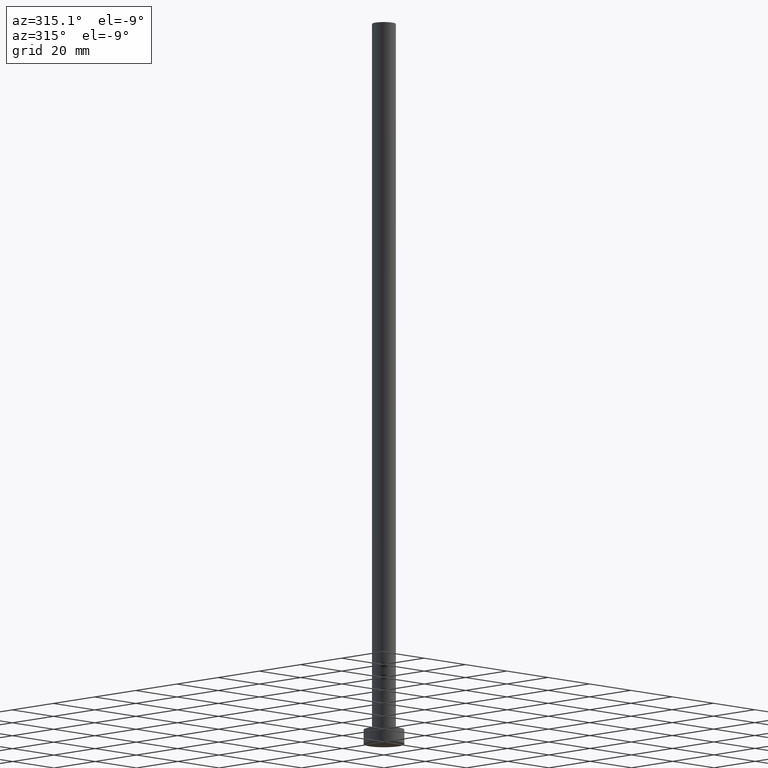
[diagram: clean part render]
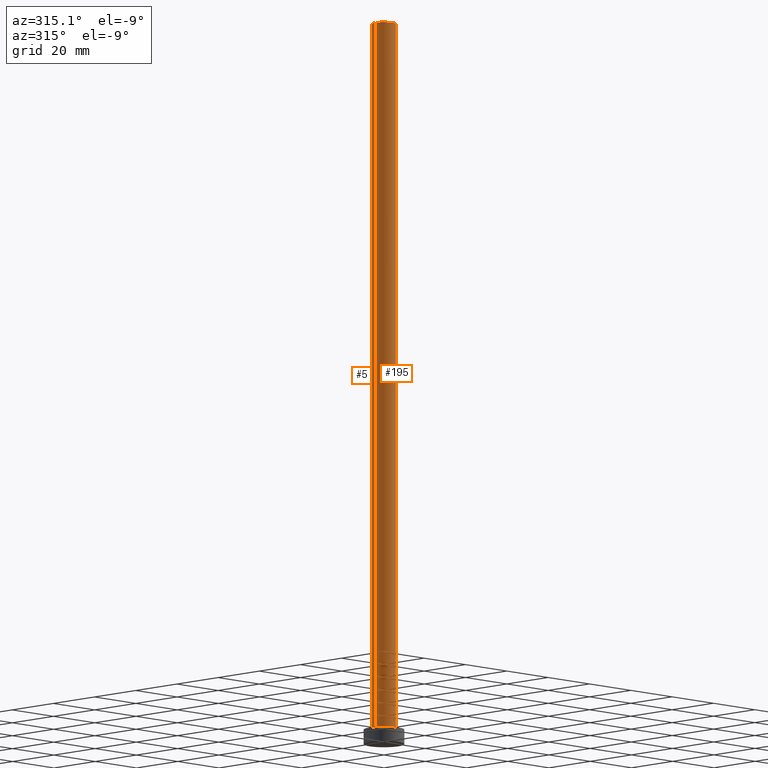
[diagram: same view with one multi-face feature highlighted, each face labeled with its STEP entity id]
A machine part, auxiliary view. The highlighted faces form ONE feature: a constant-radius fillet chain: 2 tangent blend faces with common blend radius 4.1 mm. The faces share edges in the B-rep.
Their STEP definitions:
[1] entity #5 (Cylinder):
#1 = DIRECTION ( 'NONE',  ( -1.000000000000000000, 0.000000000000000000, 0.000000000000000000 ) ) ;
#4 = CARTESIAN_POINT ( 'NONE',  ( -4.099999999999999645, 0.000000000000000000, 5.000000000000000000 ) ) ;
#5 = ADVANCED_FACE ( 'NONE', ( #166 ), #241, .T. ) ;
#15 = AXIS2_PLACEMENT_3D ( 'NONE', #210, #48, #153 ) ;
#25 = CARTESIAN_POINT ( 'NONE',  ( -4.099999999999999645, 0.000000000000000000, 250.0000000000000000 ) ) ;
#26 = CARTESIAN_POINT ( 'NONE',  ( 4.099999999999999645, 5.021051876504147385E-16, 250.0000000000000000 ) ) ;
#27 = DIRECTION ( 'NONE',  ( -0.000000000000000000, -0.000000000000000000, -1.000000000000000000 ) ) ;
#40 = VECTOR ( 'NONE', #27, 1000.000000000000000 ) ;
#42 = ORIENTED_EDGE ( 'NONE', *, *, #96, .T. ) ;
#48 = DIRECTION ( 'NONE',  ( 0.000000000000000000, 0.000000000000000000, 1.000000000000000000 ) ) ;
#49 = AXIS2_PLACEMENT_3D ( 'NONE', #66, #184, #1 ) ;
#51 = CARTESIAN_POINT ( 'NONE',  ( 4.099999999999999645, 5.021051876504147385E-16, 5.000000000000000000 ) ) ;
#63 = VERTEX_POINT ( 'NONE', #51 ) ;
#66 = CARTESIAN_POINT ( 'NONE',  ( 0.000000000000000000, 0.000000000000000000, 250.0000000000000000 ) ) ;
#69 = CARTESIAN_POINT ( 'NONE',  ( 4.099999999999999645, 5.021051876504147385E-16, 250.0000000000000000 ) ) ;
#72 = CARTESIAN_POINT ( 'NONE',  ( 0.000000000000000000, 0.000000000000000000, 5.000000000000000000 ) ) ;
#91 = EDGE_CURVE ( 'NONE', #145, #163, #143, .T. ) ;
#96 = EDGE_CURVE ( 'NONE', #145, #63, #190, .T. ) ;
#110 = CARTESIAN_POINT ( 'NONE',  ( -4.099999999999999645, 0.000000000000000000, 250.0000000000000000 ) ) ;
#114 = DIRECTION ( 'NONE',  ( 0.000000000000000000, 0.000000000000000000, 1.000000000000000000 ) ) ;
#122 = VECTOR ( 'NONE', #245, 1000.000000000000000 ) ;
#123 = EDGE_LOOP ( 'NONE', ( #254, #42, #243, #183 ) ) ;
#133 = DIRECTION ( 'NONE',  ( 1.000000000000000000, 0.000000000000000000, 0.000000000000000000 ) ) ;
#143 = CIRCLE ( 'NONE', #15, 4.099999999999999645 ) ;
#145 = VERTEX_POINT ( 'NONE', #69 ) ;
#153 = DIRECTION ( 'NONE',  ( 1.000000000000000000, 0.000000000000000000, 0.000000000000000000 ) ) ;
#163 = VERTEX_POINT ( 'NONE', #25 ) ;
#165 = CIRCLE ( 'NONE', #248, 4.099999999999999645 ) ;
#166 = FACE_OUTER_BOUND ( 'NONE', #123, .T. ) ;
#183 = ORIENTED_EDGE ( 'NONE', *, *, #185, .F. ) ;
#184 = DIRECTION ( 'NONE',  ( -0.000000000000000000, -0.000000000000000000, -1.000000000000000000 ) ) ;
#185 = EDGE_CURVE ( 'NONE', #163, #218, #208, .T. ) ;
#190 = LINE ( 'NONE', #26, #122 ) ;
#208 = LINE ( 'NONE', #110, #40 ) ;
#210 = CARTESIAN_POINT ( 'NONE',  ( 0.000000000000000000, 0.000000000000000000, 250.0000000000000000 ) ) ;
#218 = VERTEX_POINT ( 'NONE', #4 ) ;
#241 = CYLINDRICAL_SURFACE ( 'NONE', #49, 4.099999999999999645 ) ;
#243 = ORIENTED_EDGE ( 'NONE', *, *, #252, .T. ) ;
#245 = DIRECTION ( 'NONE',  ( -0.000000000000000000, -0.000000000000000000, -1.000000000000000000 ) ) ;
#248 = AXIS2_PLACEMENT_3D ( 'NONE', #72, #114, #133 ) ;
#252 = EDGE_CURVE ( 'NONE', #63, #218, #165, .T. ) ;
#254 = ORIENTED_EDGE ( 'NONE', *, *, #91, .F. ) ;
[2] entity #195 (Cylinder):
#4 = CARTESIAN_POINT ( 'NONE',  ( -4.099999999999999645, 0.000000000000000000, 5.000000000000000000 ) ) ;
#9 = CYLINDRICAL_SURFACE ( 'NONE', #206, 4.099999999999999645 ) ;
#13 = EDGE_CURVE ( 'NONE', #163, #145, #121, .T. ) ;
#16 = CIRCLE ( 'NONE', #128, 4.099999999999999645 ) ;
#25 = CARTESIAN_POINT ( 'NONE',  ( -4.099999999999999645, 0.000000000000000000, 250.0000000000000000 ) ) ;
#26 = CARTESIAN_POINT ( 'NONE',  ( 4.099999999999999645, 5.021051876504147385E-16, 250.0000000000000000 ) ) ;
#27 = DIRECTION ( 'NONE',  ( -0.000000000000000000, -0.000000000000000000, -1.000000000000000000 ) ) ;
#40 = VECTOR ( 'NONE', #27, 1000.000000000000000 ) ;
#43 = DIRECTION ( 'NONE',  ( 1.000000000000000000, 0.000000000000000000, 0.000000000000000000 ) ) ;
#51 = CARTESIAN_POINT ( 'NONE',  ( 4.099999999999999645, 5.021051876504147385E-16, 5.000000000000000000 ) ) ;
#63 = VERTEX_POINT ( 'NONE', #51 ) ;
#69 = CARTESIAN_POINT ( 'NONE',  ( 4.099999999999999645, 5.021051876504147385E-16, 250.0000000000000000 ) ) ;
#78 = EDGE_CURVE ( 'NONE', #218, #63, #16, .T. ) ;
#84 = ORIENTED_EDGE ( 'NONE', *, *, #13, .F. ) ;
#85 = EDGE_LOOP ( 'NONE', ( #201, #84, #104, #240 ) ) ;
#96 = EDGE_CURVE ( 'NONE', #145, #63, #190, .T. ) ;
#103 = AXIS2_PLACEMENT_3D ( 'NONE', #146, #221, #43 ) ;
#104 = ORIENTED_EDGE ( 'NONE', *, *, #185, .T. ) ;
#110 = CARTESIAN_POINT ( 'NONE',  ( -4.099999999999999645, 0.000000000000000000, 250.0000000000000000 ) ) ;
#113 = DIRECTION ( 'NONE',  ( -0.000000000000000000, -0.000000000000000000, -1.000000000000000000 ) ) ;
#121 = CIRCLE ( 'NONE', #103, 4.099999999999999645 ) ;
#122 = VECTOR ( 'NONE', #245, 1000.000000000000000 ) ;
#127 = FACE_OUTER_BOUND ( 'NONE', #85, .T. ) ;
#128 = AXIS2_PLACEMENT_3D ( 'NONE', #187, #129, #207 ) ;
#129 = DIRECTION ( 'NONE',  ( 0.000000000000000000, 0.000000000000000000, 1.000000000000000000 ) ) ;
#145 = VERTEX_POINT ( 'NONE', #69 ) ;
#146 = CARTESIAN_POINT ( 'NONE',  ( 0.000000000000000000, 0.000000000000000000, 250.0000000000000000 ) ) ;
#163 = VERTEX_POINT ( 'NONE', #25 ) ;
#185 = EDGE_CURVE ( 'NONE', #163, #218, #208, .T. ) ;
#187 = CARTESIAN_POINT ( 'NONE',  ( 0.000000000000000000, 0.000000000000000000, 5.000000000000000000 ) ) ;
#190 = LINE ( 'NONE', #26, #122 ) ;
#195 = ADVANCED_FACE ( 'NONE', ( #127 ), #9, .T. ) ;
#201 = ORIENTED_EDGE ( 'NONE', *, *, #96, .F. ) ;
#206 = AXIS2_PLACEMENT_3D ( 'NONE', #224, #113, #226 ) ;
#207 = DIRECTION ( 'NONE',  ( 1.000000000000000000, 0.000000000000000000, 0.000000000000000000 ) ) ;
#208 = LINE ( 'NONE', #110, #40 ) ;
#218 = VERTEX_POINT ( 'NONE', #4 ) ;
#221 = DIRECTION ( 'NONE',  ( 0.000000000000000000, 0.000000000000000000, 1.000000000000000000 ) ) ;
#224 = CARTESIAN_POINT ( 'NONE',  ( 0.000000000000000000, 0.000000000000000000, 250.0000000000000000 ) ) ;
#226 = DIRECTION ( 'NONE',  ( -1.000000000000000000, 0.000000000000000000, 0.000000000000000000 ) ) ;
#240 = ORIENTED_EDGE ( 'NONE', *, *, #78, .T. ) ;
#245 = DIRECTION ( 'NONE',  ( -0.000000000000000000, -0.000000000000000000, -1.000000000000000000 ) ) ;